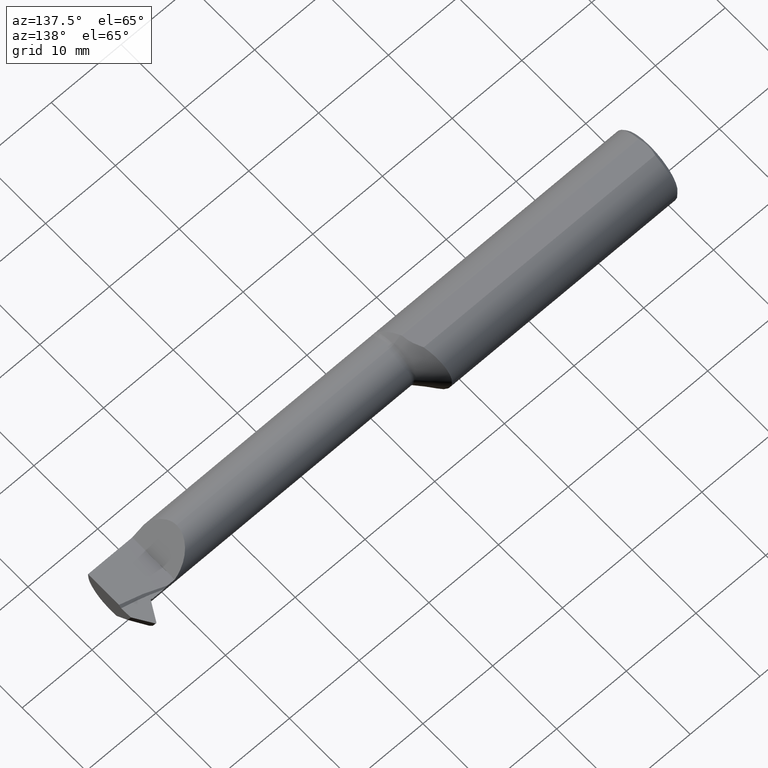
[diagram: clean part render]
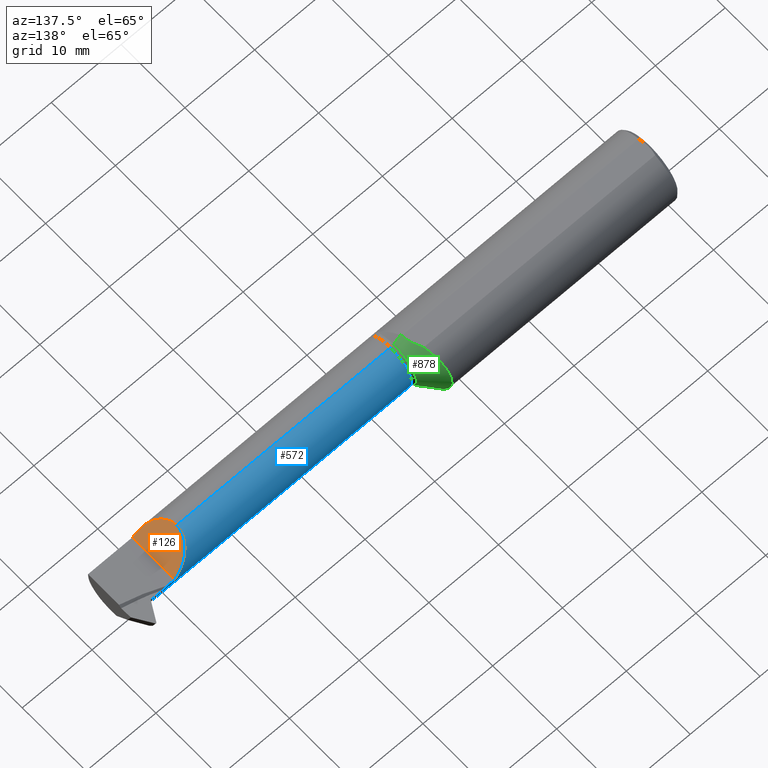
[diagram: same view with three faces highlighted in distinct colors, each labeled with its STEP entity id]
A machine part, auxiliary view with three faces highlighted in distinct colors.
Their STEP definitions:

[orange] entity #126 — the highlighted planar face has unit normal (-0.7071, 0, -0.7071).
#5 = CARTESIAN_POINT ( 'NONE',  ( 2.672392899693941892, 0.07426912429395893245, 0.07825710030605814715 ) ) ;
#60 =( BOUNDED_CURVE ( )  B_SPLINE_CURVE ( 3, ( #556, #181, #634, #919 ),
 .UNSPECIFIED., .F., .F. ) 
 B_SPLINE_CURVE_WITH_KNOTS ( ( 4, 4 ),
 ( 4.715858429565469301, 5.023262387692851050 ),
 .UNSPECIFIED. ) 
 CURVE ( )  GEOMETRIC_REPRESENTATION_ITEM ( )  RATIONAL_B_SPLINE_CURVE ( ( 1.000000000000000000, 0.9921407246595839169, 0.9921407246595839169, 1.000000000000000000 ) ) 
 REPRESENTATION_ITEM ( '' )  );
#68 = EDGE_CURVE ( 'NONE', #586, #977, #563, .T. ) ;
#100 =( BOUNDED_CURVE ( )  B_SPLINE_CURVE ( 3, ( #536, #732, #444, #810 ),
 .UNSPECIFIED., .F., .T. ) 
 B_SPLINE_CURVE_WITH_KNOTS ( ( 4, 4 ),
 ( 5.157869252308477037, 6.283185307179586232 ),
 .UNSPECIFIED. ) 
 CURVE ( )  GEOMETRIC_REPRESENTATION_ITEM ( )  RATIONAL_B_SPLINE_CURVE ( ( 1.000000000000000000, 0.8972268081433656395, 0.8972268081433656395, 1.000000000000000000 ) ) 
 REPRESENTATION_ITEM ( '' )  );
#126 = ADVANCED_FACE ( 'NONE', ( #194 ), #1008, .F. ) ;
#181 = CARTESIAN_POINT ( 'NONE',  ( 2.730726762412658104, -0.1872820046412290440, 0.01992323758734193540 ) ) ;
#183 = CARTESIAN_POINT ( 'NONE',  ( 2.750000000000000888, -1.050000000000000044, 0.0006500000000000631791 ) ) ;
#194 = FACE_OUTER_BOUND ( 'NONE', #547, .T. ) ;
#283 = EDGE_CURVE ( 'NONE', #586, #533, #60, .T. ) ;
#286 = DIRECTION ( 'NONE',  ( -0.7071067811865513475, 0.000000000000000000, 0.7071067811865435759 ) ) ;
#301 = EDGE_CURVE ( 'NONE', #533, #696, #100, .T. ) ;
#398 =( BOUNDED_CURVE ( )  B_SPLINE_CURVE ( 3, ( #918, #1111, #5, #827 ),
 .UNSPECIFIED., .F., .T. ) 
 B_SPLINE_CURVE_WITH_KNOTS ( ( 4, 4 ),
 ( 0.000000000000000000, 1.565909089294453604 ),
 .UNSPECIFIED. ) 
 CURVE ( )  GEOMETRIC_REPRESENTATION_ITEM ( )  RATIONAL_B_SPLINE_CURVE ( ( 1.000000000000000000, 0.8058883784621437840, 0.8058883784621437840, 1.000000000000000000 ) ) 
 REPRESENTATION_ITEM ( '' )  );
#444 = CARTESIAN_POINT ( 'NONE',  ( 2.617649999999999366, -0.1110657930003793037, 0.1330000000000000349 ) ) ;
#471 = DIRECTION ( 'NONE',  ( -0.000000000000000000, 1.000000000000000000, -0.000000000000000000 ) ) ;
#508 = CARTESIAN_POINT ( 'NONE',  ( 2.750000000000000444, -0.1873488724278853934, 0.0006500000000006096170 ) ) ;
#533 = VERTEX_POINT ( 'NONE', #601 ) ;
#536 = CARTESIAN_POINT ( 'NONE',  ( 2.693341453216400616, -0.1783697086546702781, 0.05730854678359963150 ) ) ;
#547 = EDGE_LOOP ( 'NONE', ( #592, #714, #741, #678 ) ) ;
#556 = CARTESIAN_POINT ( 'NONE',  ( 2.750000000000000444, -0.1873488724278853934, 0.0006500000000006096170 ) ) ;
#563 = LINE ( 'NONE', #832, #1178 ) ;
#586 = VERTEX_POINT ( 'NONE', #508 ) ;
#592 = ORIENTED_EDGE ( 'NONE', *, *, #301, .F. ) ;
#601 = CARTESIAN_POINT ( 'NONE',  ( 2.693341453216400616, -0.1783697086546702781, 0.05730854678359963150 ) ) ;
#634 = CARTESIAN_POINT ( 'NONE',  ( 2.711690972638300057, -0.1842652404698977286, 0.03895902736170058639 ) ) ;
#678 = ORIENTED_EDGE ( 'NONE', *, *, #968, .F. ) ;
#696 = VERTEX_POINT ( 'NONE', #794 ) ;
#714 = ORIENTED_EDGE ( 'NONE', *, *, #283, .F. ) ;
#732 = CARTESIAN_POINT ( 'NONE',  ( 2.645770520002824977, -0.1556549305389048898, 0.1048794799971744518 ) ) ;
#741 = ORIENTED_EDGE ( 'NONE', *, *, #68, .T. ) ;
#794 = CARTESIAN_POINT ( 'NONE',  ( 2.617649999999999366, -0.05834999999999981868, 0.1330000000000000071 ) ) ;
#810 = CARTESIAN_POINT ( 'NONE',  ( 2.617649999999999366, -0.05834999999999981868, 0.1330000000000000071 ) ) ;
#827 = CARTESIAN_POINT ( 'NONE',  ( 2.750000000000000444, 0.07464841164465103873, 0.0006500000000000629623 ) ) ;
#832 = CARTESIAN_POINT ( 'NONE',  ( 2.750000000000000888, -1.050000000000000044, 0.0006500000000000631791 ) ) ;
#918 = CARTESIAN_POINT ( 'NONE',  ( 2.617649999999999366, -0.05834999999999981868, 0.1330000000000000071 ) ) ;
#919 = CARTESIAN_POINT ( 'NONE',  ( 2.693341453216400616, -0.1783697086546702781, 0.05730854678359963150 ) ) ;
#968 = EDGE_CURVE ( 'NONE', #696, #977, #398, .T. ) ;
#977 = VERTEX_POINT ( 'NONE', #1093 ) ;
#1003 = AXIS2_PLACEMENT_3D ( 'NONE', #183, #1119, #286 ) ;
#1008 = PLANE ( 'NONE',  #1003 ) ;
#1093 = CARTESIAN_POINT ( 'NONE',  ( 2.750000000000000444, 0.07464841164465103873, 0.0006500000000000629623 ) ) ;
#1111 = CARTESIAN_POINT ( 'NONE',  ( 2.617649999999999366, 0.01925802714158475828, 0.1330000000000000349 ) ) ;
#1119 = DIRECTION ( 'NONE',  ( -0.7071067811865436870, 0.000000000000000000, -0.7071067811865514585 ) ) ;
#1178 = VECTOR ( 'NONE', #471, 39.37007874015748143 ) ;

[blue] entity #572 — the highlighted cylindrical surface (edge-blend (fillet) strip) has radius 3.3782 mm, axis along (-1, -0, -0).
#5 = CARTESIAN_POINT ( 'NONE',  ( 2.672392899693941892, 0.07426912429395893245, 0.07825710030605814715 ) ) ;
#14 = VERTEX_POINT ( 'NONE', #1113 ) ;
#18 = EDGE_CURVE ( 'NONE', #243, #773, #484, .T. ) ;
#38 = VECTOR ( 'NONE', #457, 39.37007874015748143 ) ;
#63 = DIRECTION ( 'NONE',  ( -1.000000000000000000, -0.000000000000000000, -0.000000000000000000 ) ) ;
#72 = CARTESIAN_POINT ( 'NONE',  ( 2.889649786640923423, 0.05123204897853908535, -0.07537091310091116603 ) ) ;
#80 = CARTESIAN_POINT ( 'NONE',  ( 2.871905451040527968, 0.06992012348188784976, -0.03827876075488843149 ) ) ;
#92 = ORIENTED_EDGE ( 'NONE', *, *, #968, .T. ) ;
#95 = DIRECTION ( 'NONE',  ( 0.000000000000000000, -8.023519718233854736E-15, -1.000000000000000000 ) ) ;
#113 = VECTOR ( 'NONE', #1034, 39.37007874015748143 ) ;
#137 = DIRECTION ( 'NONE',  ( 0.000000000000000000, 0.000000000000000000, 1.000000000000000000 ) ) ;
#155 = EDGE_CURVE ( 'NONE', #696, #251, #941, .T. ) ;
#157 = CARTESIAN_POINT ( 'NONE',  ( 2.877439043531621721, 0.07438306707720576672, -0.008422167433508244427 ) ) ;
#193 = DIRECTION ( 'NONE',  ( 0.000000000000000000, 0.000000000000000000, 1.000000000000000000 ) ) ;
#199 = AXIS2_PLACEMENT_3D ( 'NONE', #395, #1135, #95 ) ;
#207 = CARTESIAN_POINT ( 'NONE',  ( 1.400000000000000133, 0.06397316657360095637, -0.05221152094516229303 ) ) ;
#241 = CARTESIAN_POINT ( 'NONE',  ( 2.893835302517309582, 0.04241050335030133872, -0.1027293606381376040 ) ) ;
#243 = VERTEX_POINT ( 'NONE', #363 ) ;
#244 = CARTESIAN_POINT ( 'NONE',  ( 2.750000000000000444, -0.05834999999999981868, 0.000000000000000000 ) ) ;
#245 = VERTEX_POINT ( 'NONE', #1012 ) ;
#251 = VERTEX_POINT ( 'NONE', #901 ) ;
#254 = CARTESIAN_POINT ( 'NONE',  ( 2.811174482544573028, 0.07438306707720547528, -0.008422167433508362389 ) ) ;
#258 = CARTESIAN_POINT ( 'NONE',  ( 2.811174482544573028, 0.07438306707720547528, -0.008422167433508362389 ) ) ;
#274 = CARTESIAN_POINT ( 'NONE',  ( 1.400000000000000133, 0.07438306707720575284, -0.008422167433508244427 ) ) ;
#285 = CARTESIAN_POINT ( 'NONE',  ( 1.410355339059327306, -0.05834999999999981868, 0.000000000000000000 ) ) ;
#310 = CIRCLE ( 'NONE', #984, 0.1330000000000000071 ) ;
#329 = CARTESIAN_POINT ( 'NONE',  ( 2.790749082609246035, 0.07465000000000018843, -1.505118291944111958E-16 ) ) ;
#353 = VERTEX_POINT ( 'NONE', #254 ) ;
#363 = CARTESIAN_POINT ( 'NONE',  ( 2.888308789459395509, 0.06397316657360097025, -0.05221152094516228609 ) ) ;
#378 = EDGE_CURVE ( 'NONE', #1077, #251, #947, .T. ) ;
#395 = CARTESIAN_POINT ( 'NONE',  ( 2.889649786640923423, -0.05834999999999981868, 0.000000000000000000 ) ) ;
#398 =( BOUNDED_CURVE ( )  B_SPLINE_CURVE ( 3, ( #918, #1111, #5, #827 ),
 .UNSPECIFIED., .F., .T. ) 
 B_SPLINE_CURVE_WITH_KNOTS ( ( 4, 4 ),
 ( 0.000000000000000000, 1.565909089294453604 ),
 .UNSPECIFIED. ) 
 CURVE ( )  GEOMETRIC_REPRESENTATION_ITEM ( )  RATIONAL_B_SPLINE_CURVE ( ( 1.000000000000000000, 0.8058883784621437840, 0.8058883784621437840, 1.000000000000000000 ) ) 
 REPRESENTATION_ITEM ( '' )  );
#404 = VECTOR ( 'NONE', #63, 39.37007874015748143 ) ;
#435 = DIRECTION ( 'NONE',  ( -1.000000000000000000, -0.000000000000000000, -0.000000000000000000 ) ) ;
#448 = ORIENTED_EDGE ( 'NONE', *, *, #18, .F. ) ;
#451 = CARTESIAN_POINT ( 'NONE',  ( 2.874637002455006751, 0.07342377177427721058, -0.02354062818553172287 ) ) ;
#457 = DIRECTION ( 'NONE',  ( 1.000000000000000000, 0.000000000000000000, 0.000000000000000000 ) ) ;
#480 = CARTESIAN_POINT ( 'NONE',  ( 1.410355339059327306, -0.05834999999999980480, -0.1330000000000000071 ) ) ;
#484 = LINE ( 'NONE', #207, #113 ) ;
#518 = EDGE_CURVE ( 'NONE', #245, #799, #1148, .T. ) ;
#522 = CARTESIAN_POINT ( 'NONE',  ( 2.869323166573602535, 0.06397316657360098413, -0.05221152094516220282 ) ) ;
#524 = EDGE_LOOP ( 'NONE', ( #818, #774 ) ) ;
#525 = CARTESIAN_POINT ( 'NONE',  ( 2.888308789459395509, 0.06397316657360097025, -0.05221152094516228609 ) ) ;
#535 = CARTESIAN_POINT ( 'NONE',  ( 2.892170406672510907, 0.03045801359616415876, -0.1003399646846576398 ) ) ;
#553 = CARTESIAN_POINT ( 'NONE',  ( 1.400000000000000133, -0.05834999999999981868, 0.1330000000000000071 ) ) ;
#572 = ADVANCED_FACE ( 'NONE', ( #1058, #969 ), #595, .T. ) ;
#589 = DIRECTION ( 'NONE',  ( 1.000000000000000000, 0.000000000000000000, 0.000000000000000000 ) ) ;
#595 = CYLINDRICAL_SURFACE ( 'NONE', #828, 0.1330000000000000071 ) ;
#617 = CIRCLE ( 'NONE', #199, 0.1330000000000000071 ) ;
#624 = VERTEX_POINT ( 'NONE', #1010 ) ;
#626 = CARTESIAN_POINT ( 'NONE',  ( 2.797514112118296481, 0.07465000000000018843, -0.002932276381226010115 ) ) ;
#631 = ORIENTED_EDGE ( 'NONE', *, *, #636, .T. ) ;
#636 = EDGE_CURVE ( 'NONE', #799, #353, #841, .T. ) ;
#640 = LINE ( 'NONE', #274, #38 ) ;
#676 = VECTOR ( 'NONE', #792, 39.37007874015748143 ) ;
#688 = ORIENTED_EDGE ( 'NONE', *, *, #518, .T. ) ;
#696 = VERTEX_POINT ( 'NONE', #794 ) ;
#698 = CARTESIAN_POINT ( 'NONE',  ( 1.400000000000000133, 0.07465000000000018843, -6.429183357567480113E-17 ) ) ;
#701 = CARTESIAN_POINT ( 'NONE',  ( 2.897765231929773755, -0.003422770208879020309, -0.1330000000000000349 ) ) ;
#722 = ORIENTED_EDGE ( 'NONE', *, *, #1161, .F. ) ;
#773 = VERTEX_POINT ( 'NONE', #522 ) ;
#774 = ORIENTED_EDGE ( 'NONE', *, *, #1017, .T. ) ;
#789 = DIRECTION ( 'NONE',  ( -1.000000000000000000, -0.000000000000000000, -0.000000000000000000 ) ) ;
#792 = DIRECTION ( 'NONE',  ( -1.000000000000000000, -0.000000000000000000, -0.000000000000000000 ) ) ;
#794 = CARTESIAN_POINT ( 'NONE',  ( 2.617649999999999366, -0.05834999999999981868, 0.1330000000000000071 ) ) ;
#799 = VERTEX_POINT ( 'NONE', #329 ) ;
#809 = CARTESIAN_POINT ( 'NONE',  ( 2.898797270268486770, -0.05834999999999983950, -0.1329999999999999793 ) ) ;
#815 = CARTESIAN_POINT ( 'NONE',  ( 2.877439043531621721, 0.07438306707720576672, -0.008422167433508244427 ) ) ;
#818 = ORIENTED_EDGE ( 'NONE', *, *, #1101, .T. ) ;
#824 = VERTEX_POINT ( 'NONE', #157 ) ;
#827 = CARTESIAN_POINT ( 'NONE',  ( 2.750000000000000444, 0.07464841164465103873, 0.0006500000000000629623 ) ) ;
#828 = AXIS2_PLACEMENT_3D ( 'NONE', #964, #789, #137 ) ;
#841 = B_SPLINE_CURVE_WITH_KNOTS ( 'NONE', 3,
 ( #990, #626, #1097, #258 ),
 .UNSPECIFIED., .F., .F.,
 ( 4, 4 ),
 ( 0.01712178148595226712, 0.01768024351192760274 ),
 .UNSPECIFIED. ) ;
#854 = EDGE_LOOP ( 'NONE', ( #722, #955, #1036, #871, #92, #995, #688, #631, #936, #876, #448 ) ) ;
#871 = ORIENTED_EDGE ( 'NONE', *, *, #155, .F. ) ;
#876 = ORIENTED_EDGE ( 'NONE', *, *, #1023, .F. ) ;
#883 = CARTESIAN_POINT ( 'NONE',  ( 1.400000000000000133, -0.05834999999999980480, -0.1330000000000000071 ) ) ;
#888 =( BOUNDED_CURVE ( )  B_SPLINE_CURVE ( 3, ( #908, #80, #451, #815 ),
 .UNSPECIFIED., .F., .T. ) 
 B_SPLINE_CURVE_WITH_KNOTS ( ( 4, 4 ),
 ( 1.167374435702474011, 1.507429361145364410 ),
 .UNSPECIFIED. ) 
 CURVE ( )  GEOMETRIC_REPRESENTATION_ITEM ( )  RATIONAL_B_SPLINE_CURVE ( ( 1.000000000000000000, 0.9903867468867805224, 0.9903867468867805224, 1.000000000000000000 ) ) 
 REPRESENTATION_ITEM ( '' )  );
#900 = CARTESIAN_POINT ( 'NONE',  ( 2.892170406672510907, 0.04198996468465689830, -0.08880801359616505297 ) ) ;
#901 = CARTESIAN_POINT ( 'NONE',  ( 1.410355339059327306, -0.05834999999999981868, 0.1330000000000000071 ) ) ;
#908 = CARTESIAN_POINT ( 'NONE',  ( 2.869323166573602535, 0.06397316657360098413, -0.05221152094516220282 ) ) ;
#918 = CARTESIAN_POINT ( 'NONE',  ( 2.617649999999999366, -0.05834999999999981868, 0.1330000000000000071 ) ) ;
#925 = DIRECTION ( 'NONE',  ( 1.000000000000000000, 0.000000000000000000, 0.000000000000000000 ) ) ;
#930 =( BOUNDED_CURVE ( )  B_SPLINE_CURVE ( 3, ( #991, #535, #900, #72 ),
 .UNSPECIFIED., .F., .F. ) 
 B_SPLINE_CURVE_WITH_KNOTS ( ( 4, 4 ),
 ( 2.958687874245858218, 3.324497432933728458 ),
 .UNSPECIFIED. ) 
 CURVE ( )  GEOMETRIC_REPRESENTATION_ITEM ( )  RATIONAL_B_SPLINE_CURVE ( ( 1.000000000000000000, 0.9888796676035959132, 0.9888796676035959132, 1.000000000000000000 ) ) 
 REPRESENTATION_ITEM ( '' )  );
#936 = ORIENTED_EDGE ( 'NONE', *, *, #973, .T. ) ;
#941 = LINE ( 'NONE', #553, #404 ) ;
#947 = CIRCLE ( 'NONE', #960, 0.1330000000000000071 ) ;
#955 = ORIENTED_EDGE ( 'NONE', *, *, #1158, .T. ) ;
#960 = AXIS2_PLACEMENT_3D ( 'NONE', #285, #925, #193 ) ;
#964 = CARTESIAN_POINT ( 'NONE',  ( 1.400000000000000133, -0.05834999999999981868, 0.000000000000000000 ) ) ;
#968 = EDGE_CURVE ( 'NONE', #696, #977, #398, .T. ) ;
#969 = FACE_OUTER_BOUND ( 'NONE', #854, .T. ) ;
#973 = EDGE_CURVE ( 'NONE', #353, #824, #640, .T. ) ;
#977 = VERTEX_POINT ( 'NONE', #1093 ) ;
#978 = LINE ( 'NONE', #883, #676 ) ;
#984 = AXIS2_PLACEMENT_3D ( 'NONE', #244, #435, #1172 ) ;
#990 = CARTESIAN_POINT ( 'NONE',  ( 2.790749082609246035, 0.07465000000000018843, -1.505118291944111958E-16 ) ) ;
#991 = CARTESIAN_POINT ( 'NONE',  ( 2.889649786640923423, 0.01702091310091017815, -0.1095820489785397089 ) ) ;
#995 = ORIENTED_EDGE ( 'NONE', *, *, #1181, .T. ) ;
#1010 = CARTESIAN_POINT ( 'NONE',  ( 2.889649786640923423, 0.05123204897853908535, -0.07537091310091116603 ) ) ;
#1012 = CARTESIAN_POINT ( 'NONE',  ( 2.750000000000000444, 0.07465000000000017455, -6.429183357567478880E-17 ) ) ;
#1015 =( BOUNDED_CURVE ( )  B_SPLINE_CURVE ( 3, ( #1167, #701, #241, #525 ),
 .UNSPECIFIED., .F., .F. ) 
 B_SPLINE_CURVE_WITH_KNOTS ( ( 4, 4 ),
 ( 3.324852225049197862, 4.492226660751670764 ),
 .UNSPECIFIED. ) 
 CURVE ( )  GEOMETRIC_REPRESENTATION_ITEM ( )  RATIONAL_B_SPLINE_CURVE ( ( 1.000000000000000000, 0.8896241898414404270, 0.8896241898414404270, 1.000000000000000000 ) ) 
 REPRESENTATION_ITEM ( '' )  );
#1017 = EDGE_CURVE ( 'NONE', #14, #624, #930, .T. ) ;
#1022 = VERTEX_POINT ( 'NONE', #809 ) ;
#1023 = EDGE_CURVE ( 'NONE', #773, #824, #888, .T. ) ;
#1034 = DIRECTION ( 'NONE',  ( -1.000000000000000000, -0.000000000000000000, -0.000000000000000000 ) ) ;
#1036 = ORIENTED_EDGE ( 'NONE', *, *, #378, .T. ) ;
#1058 = FACE_BOUND ( 'NONE', #524, .T. ) ;
#1077 = VERTEX_POINT ( 'NONE', #480 ) ;
#1093 = CARTESIAN_POINT ( 'NONE',  ( 2.750000000000000444, 0.07464841164465103873, 0.0006500000000000629623 ) ) ;
#1097 = CARTESIAN_POINT ( 'NONE',  ( 2.804324153791033503, 0.07455358803598087503, -0.005734763028661623782 ) ) ;
#1101 = EDGE_CURVE ( 'NONE', #624, #14, #617, .T. ) ;
#1106 = VECTOR ( 'NONE', #589, 39.37007874015748143 ) ;
#1111 = CARTESIAN_POINT ( 'NONE',  ( 2.617649999999999366, 0.01925802714158475828, 0.1330000000000000349 ) ) ;
#1113 = CARTESIAN_POINT ( 'NONE',  ( 2.889649786640923423, 0.01702091310091017815, -0.1095820489785397089 ) ) ;
#1135 = DIRECTION ( 'NONE',  ( -1.000000000000000000, -0.000000000000000000, -0.000000000000000000 ) ) ;
#1148 = LINE ( 'NONE', #698, #1106 ) ;
#1158 = EDGE_CURVE ( 'NONE', #1022, #1077, #978, .T. ) ;
#1161 = EDGE_CURVE ( 'NONE', #1022, #243, #1015, .T. ) ;
#1167 = CARTESIAN_POINT ( 'NONE',  ( 2.898797270268486770, -0.05834999999999983950, -0.1329999999999999793 ) ) ;
#1172 = DIRECTION ( 'NONE',  ( 0.000000000000000000, 0.000000000000000000, 1.000000000000000000 ) ) ;
#1181 = EDGE_CURVE ( 'NONE', #977, #245, #310, .T. ) ;

[green] entity #878 — the highlighted conical surface has half-angle 45 deg.
#3 = VERTEX_POINT ( 'NONE', #110 ) ;
#8 = CARTESIAN_POINT ( 'NONE',  ( 1.287233112653665357, 0.1876308245808173403, -0.007313932636929163476 ) ) ;
#13 = CARTESIAN_POINT ( 'NONE',  ( 1.302626747636566940, 0.1247708322425328670, -0.1403109275308252191 ) ) ;
#20 = CARTESIAN_POINT ( 'NONE',  ( 1.310463333522016383, 0.09439550663752108162, -0.1619501463759350501 ) ) ;
#34 = ORIENTED_EDGE ( 'NONE', *, *, #659, .F. ) ;
#41 = EDGE_CURVE ( 'NONE', #1184, #214, #637, .T. ) ;
#43 = DIRECTION ( 'NONE',  ( -1.000000000000000000, -0.000000000000000000, -0.000000000000000000 ) ) ;
#83 = VERTEX_POINT ( 'NONE', #189 ) ;
#91 = CARTESIAN_POINT ( 'NONE',  ( 1.287801414367355290, 0.1852400666705822929, 0.03079028734492995564 ) ) ;
#99 = CARTESIAN_POINT ( 'NONE',  ( 1.294523128465643991, 0.1573629312742696462, -0.1024417037855125112 ) ) ;
#104 = CARTESIAN_POINT ( 'NONE',  ( 1.352116104292441223, -0.04189000192750409746, 0.1803499999999999548 ) ) ;
#108 = CARTESIAN_POINT ( 'NONE',  ( 1.392677669529663875, -0.05834999999999981868, 0.1403223304703362095 ) ) ;
#110 = CARTESIAN_POINT ( 'NONE',  ( 1.322226761124839722, 0.05073361804563108340, 0.1803500000000000381 ) ) ;
#111 = CARTESIAN_POINT ( 'NONE',  ( 1.287216210840755215, 0.1877021456528151777, 0.005461557674737399330 ) ) ;
#138 = EDGE_CURVE ( 'NONE', #1131, #1184, #487, .T. ) ;
#153 = CARTESIAN_POINT ( 'NONE',  ( 1.392677669529663875, -0.05834999999999979092, -0.1403223304703362095 ) ) ;
#178 = EDGE_CURVE ( 'NONE', #214, #3, #527, .T. ) ;
#189 = CARTESIAN_POINT ( 'NONE',  ( 1.354968261256594531, -0.05835000000000002685, 0.1780317387434050269 ) ) ;
#203 = CARTESIAN_POINT ( 'NONE',  ( 1.319337034764406891, 0.06115010668878900768, -0.1775186634490950599 ) ) ;
#208 = CARTESIAN_POINT ( 'NONE',  ( 1.291376529822215735, 0.1703085496625234840, 0.07907260733930802921 ) ) ;
#214 = VERTEX_POINT ( 'NONE', #341 ) ;
#217 = CARTESIAN_POINT ( 'NONE',  ( 1.337572761939021859, 0.01862349438791057604, 0.1803500000000000103 ) ) ;
#262 = EDGE_CURVE ( 'NONE', #1137, #83, #881, .T. ) ;
#268 = CARTESIAN_POINT ( 'NONE',  ( 1.392677669529663875, -0.05834999999999981868, 0.000000000000000000 ) ) ;
#271 = VECTOR ( 'NONE', #913, 39.37007874015748854 ) ;
#273 = LINE ( 'NONE', #1092, #271 ) ;
#278 = ORIENTED_EDGE ( 'NONE', *, *, #262, .T. ) ;
#281 = CARTESIAN_POINT ( 'NONE',  ( 1.302344364721590653, 0.1258879061987050185, 0.1393028251938591699 ) ) ;
#287 = CARTESIAN_POINT ( 'NONE',  ( 1.300366864174358650, 0.1337561031483592289, -0.1317747899903143061 ) ) ;
#293 = B_SPLINE_CURVE_WITH_KNOTS ( 'NONE', 3,
 ( #860, #1044, #217, #396, #762, #574, #104, #648 ),
 .UNSPECIFIED., .F., .F.,
 ( 4, 2, 2, 4 ),
 ( 0.004145903190273300849, 0.005498764589092035304, 0.006175195288501404700, 0.006851625987910774963 ),
 .UNSPECIFIED. ) ;
#297 = CARTESIAN_POINT ( 'NONE',  ( 1.322226761124839722, 0.05073361804563108340, 0.1803500000000000381 ) ) ;
#341 = CARTESIAN_POINT ( 'NONE',  ( 1.354968261256594753, -0.05834999999999997133, -0.1780317387434049159 ) ) ;
#344 = EDGE_LOOP ( 'NONE', ( #784, #577, #716, #441, #278, #34 ) ) ;
#345 = CARTESIAN_POINT ( 'NONE',  ( 1.354968261256594753, -0.05834999999999997133, -0.1780317387434049159 ) ) ;
#372 = CARTESIAN_POINT ( 'NONE',  ( 1.296040650611813838, 0.1511645985810749770, 0.1113904599852967442 ) ) ;
#377 = CARTESIAN_POINT ( 'NONE',  ( 1.310048160486880553, 0.09592332149754158321, 0.1614042140840566408 ) ) ;
#385 = CARTESIAN_POINT ( 'NONE',  ( 1.306401947506067973, 0.1100286960033594746, -0.1517643969169450158 ) ) ;
#396 = CARTESIAN_POINT ( 'NONE',  ( 1.345608198981767201, -0.006829386849603939075, 0.1803500000000000103 ) ) ;
#397 = EDGE_CURVE ( 'NONE', #3, #1137, #293, .T. ) ;
#441 = ORIENTED_EDGE ( 'NONE', *, *, #397, .T. ) ;
#466 = CARTESIAN_POINT ( 'NONE',  ( 1.294308147217179794, 0.1582425620373410780, 0.1010780435082064971 ) ) ;
#472 = CARTESIAN_POINT ( 'NONE',  ( 1.288563873827742956, 0.1820409455122642406, -0.04473493752744760188 ) ) ;
#477 = DIRECTION ( 'NONE',  ( 0.000000000000000000, 0.000000000000000000, 1.000000000000000000 ) ) ;
#478 = CARTESIAN_POINT ( 'NONE',  ( 1.315888065801316564, 0.07390163537251728809, 0.1726011362085435041 ) ) ;
#487 = CIRCLE ( 'NONE', #691, 0.1403223304703362095 ) ;
#527 = B_SPLINE_CURVE_WITH_KNOTS ( 'NONE', 3,
 ( #345, #715, #643, #740, #1031, #576, #569, #203, #935, #752, #20, #650, #385, #13, #287, #558, #99, #1114, #825, #656, #472, #1120, #745, #8, #111, #91, #853, #1035, #208, #466, #372, #663, #281, #1129, #377, #478, #838, #297 ),
 .UNSPECIFIED., .F., .F.,
 ( 4, 2, 2, 2, 2, 2, 2, 2, 2, 2, 2, 2, 2, 2, 2, 2, 2, 2, 4 ),
 ( 0.01237582103972411328, 0.01333573452915168961, 0.01429564801857926594, 0.01525556150800684227, 0.01621547499743442033, 0.01669543174214820763, 0.01717538848686199493, 0.01813530197628956606, 0.01909521546571713718, 0.02005512895514470831, 0.02053508569985849214, 0.02101504244457227596, 0.02197495593399984709, 0.02293486942342742169, 0.02389478291285498934, 0.02485469640228256394, 0.02581460989171013160, 0.02677452338113770619, 0.02773443687056527732 ),
 .UNSPECIFIED. ) ;
#557 = CARTESIAN_POINT ( 'NONE',  ( 1.199999999999998179, -0.05834999999999977705, -0.3329999999999997407 ) ) ;
#558 = CARTESIAN_POINT ( 'NONE',  ( 1.296320311736755437, 0.1500294446420621930, -0.1129002043701442526 ) ) ;
#567 = CARTESIAN_POINT ( 'NONE',  ( 1.352489247483494639, -0.05073361804563127769, 0.1803500000000000381 ) ) ;
#569 = CARTESIAN_POINT ( 'NONE',  ( 1.325940143936352733, 0.03734480488786563745, -0.1840042851911080635 ) ) ;
#574 = CARTESIAN_POINT ( 'NONE',  ( 1.351092997493398506, -0.03308665011114130666, 0.1803500000000000936 ) ) ;
#576 = CARTESIAN_POINT ( 'NONE',  ( 1.329350153915703547, 0.02533118765943541753, -0.1860229881109676242 ) ) ;
#577 = ORIENTED_EDGE ( 'NONE', *, *, #41, .T. ) ;
#590 = FACE_OUTER_BOUND ( 'NONE', #344, .T. ) ;
#637 = LINE ( 'NONE', #557, #1103 ) ;
#642 = DIRECTION ( 'NONE',  ( -0.7071067811865513475, 8.659560562354884787E-17, -0.7071067811865435759 ) ) ;
#643 = CARTESIAN_POINT ( 'NONE',  ( 1.347483243306722756, -0.03515109766243828399, -0.1844245065291031938 ) ) ;
#648 = CARTESIAN_POINT ( 'NONE',  ( 1.352489247483494639, -0.05073361804563127769, 0.1803500000000000381 ) ) ;
#650 = CARTESIAN_POINT ( 'NONE',  ( 1.307730347949919825, 0.1048826378083085042, -0.1553640687897695771 ) ) ;
#656 = CARTESIAN_POINT ( 'NONE',  ( 1.288954375347812764, 0.1804053881614880450, -0.05093214486733167734 ) ) ;
#659 = EDGE_CURVE ( 'NONE', #1131, #83, #273, .T. ) ;
#663 = CARTESIAN_POINT ( 'NONE',  ( 1.300080258543535150, 0.1348995831369801668, 0.1306165108605437108 ) ) ;
#685 = CARTESIAN_POINT ( 'NONE',  ( 1.199999999999998179, -0.05834999999999981868, 0.000000000000000000 ) ) ;
#691 = AXIS2_PLACEMENT_3D ( 'NONE', #268, #916, #477 ) ;
#712 = CARTESIAN_POINT ( 'NONE',  ( 1.354968261256594531, -0.05835000000000002685, 0.1780317387434050269 ) ) ;
#715 = CARTESIAN_POINT ( 'NONE',  ( 1.351217303120553437, -0.04690544817629522384, -0.1817826968794462594 ) ) ;
#716 = ORIENTED_EDGE ( 'NONE', *, *, #178, .T. ) ;
#726 = CARTESIAN_POINT ( 'NONE',  ( 1.354144082012933570, -0.05583534595055402588, 0.1788559179870658489 ) ) ;
#740 = CARTESIAN_POINT ( 'NONE',  ( 1.340038752404291822, -0.01100734393750758301, -0.1874215480002736633 ) ) ;
#745 = CARTESIAN_POINT ( 'NONE',  ( 1.287709081643609421, 0.1856286585800343836, -0.02610982525124928497 ) ) ;
#752 = CARTESIAN_POINT ( 'NONE',  ( 1.311874062265819596, 0.08903011435619209712, -0.1649581271952396400 ) ) ;
#762 = CARTESIAN_POINT ( 'NONE',  ( 1.347842309812443906, -0.01555456189894688195, 0.1803499999999999548 ) ) ;
#784 = ORIENTED_EDGE ( 'NONE', *, *, #138, .T. ) ;
#825 = CARTESIAN_POINT ( 'NONE',  ( 1.290339301653355530, 0.1746239680236501279, -0.06904456622799011456 ) ) ;
#838 = CARTESIAN_POINT ( 'NONE',  ( 1.318968547943675906, 0.06250301213542786005, 0.1770391935437746200 ) ) ;
#853 = CARTESIAN_POINT ( 'NONE',  ( 1.288393214463352310, 0.1827501551820267522, 0.04314473373083424490 ) ) ;
#860 = CARTESIAN_POINT ( 'NONE',  ( 1.322226761124839722, 0.05073361804563108340, 0.1803500000000000381 ) ) ;
#878 = ADVANCED_FACE ( 'NONE', ( #590 ), #981, .T. ) ;
#881 = B_SPLINE_CURVE_WITH_KNOTS ( 'NONE', 3,
 ( #986, #1006, #726, #712 ),
 .UNSPECIFIED., .F., .F.,
 ( 4, 4 ),
 ( 7.627425471891399035E-07, 0.0002102370372012494050 ),
 .UNSPECIFIED. ) ;
#913 = DIRECTION ( 'NONE',  ( -0.7071067811865513475, 0.000000000000000000, 0.7071067811865435759 ) ) ;
#916 = DIRECTION ( 'NONE',  ( -1.000000000000000000, -0.000000000000000000, -0.000000000000000000 ) ) ;
#935 = CARTESIAN_POINT ( 'NONE',  ( 1.316243151538838196, 0.07258185416455216477, -0.1731530736261579773 ) ) ;
#958 = DIRECTION ( 'NONE',  ( 0.000000000000000000, 0.000000000000000000, 1.000000000000000000 ) ) ;
#981 = CONICAL_SURFACE ( 'NONE', #1047, 0.3329999999999997407, 0.7853981633974428389 ) ;
#986 = CARTESIAN_POINT ( 'NONE',  ( 1.352489247483494639, -0.05073361804563127769, 0.1803500000000000381 ) ) ;
#1006 = CARTESIAN_POINT ( 'NONE',  ( 1.353317762031590155, -0.05329669918612141288, 0.1796289887463177470 ) ) ;
#1031 = CARTESIAN_POINT ( 'NONE',  ( 1.336382994110499434, 0.001209398411742116947, -0.1877358743806105679 ) ) ;
#1035 = CARTESIAN_POINT ( 'NONE',  ( 1.290172451185788605, 0.1753186121875666414, 0.06724932333031373444 ) ) ;
#1044 = CARTESIAN_POINT ( 'NONE',  ( 1.330428056801812753, 0.03488693378837387504, 0.1803500000000000103 ) ) ;
#1047 = AXIS2_PLACEMENT_3D ( 'NONE', #685, #43, #958 ) ;
#1092 = CARTESIAN_POINT ( 'NONE',  ( 1.199999999999998179, -0.05834999999999981868, 0.3329999999999997407 ) ) ;
#1103 = VECTOR ( 'NONE', #642, 39.37007874015748854 ) ;
#1114 = CARTESIAN_POINT ( 'NONE',  ( 1.291543747921855667, 0.1696157454200300785, -0.08054746252562350328 ) ) ;
#1120 = CARTESIAN_POINT ( 'NONE',  ( 1.287942788268092720, 0.1846460632819053871, -0.03234117797913948350 ) ) ;
#1129 = CARTESIAN_POINT ( 'NONE',  ( 1.307307602494415022, 0.1064794760884438529, 0.1546452818744089297 ) ) ;
#1131 = VERTEX_POINT ( 'NONE', #108 ) ;
#1137 = VERTEX_POINT ( 'NONE', #567 ) ;
#1184 = VERTEX_POINT ( 'NONE', #153 ) ;